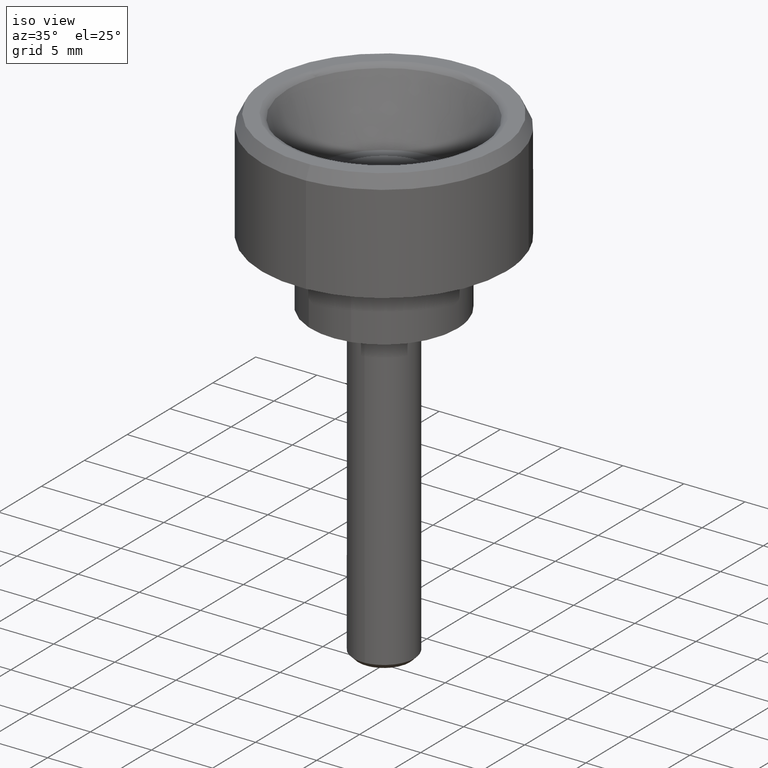
[diagram: clean part render]
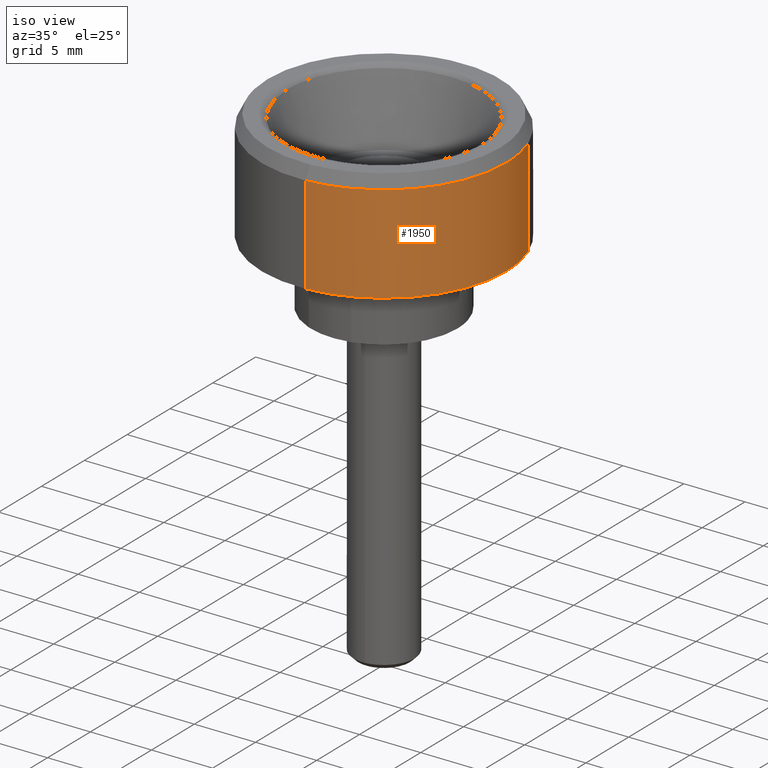
[diagram: same view with one face highlighted and labeled with its STEP entity id]
A machine part, iso view. The second image highlights one B-rep face of the part: STEP entity #1950.
In plain terms, the highlighted face is a freeform B-spline surface patch.
Its self-contained STEP definition (entity closure, byte-faithful):
#1743=CARTESIAN_POINT('',(2.503800040571518,-9.681476403777497,6.000000000001080));
#1744=VERTEX_POINT('',#1743);
#1750=CARTESIAN_POINT('',(0.610473977887163,-9.981348682527415,6.0));
#1751=VERTEX_POINT('',#1750);
#1752=CARTESIAN_POINT('',(2.503800040571517,-9.681476403777497,6.000000000001080));
#1753=CARTESIAN_POINT('',(1.571574303943828,-9.922566371860510,6.0));
#1754=CARTESIAN_POINT('',(0.610473977887163,-9.981348682527415,5.999999999999999));
#1762=(BOUNDED_CURVE()B_SPLINE_CURVE(2,(#1752,#1753,#1754),.UNSPECIFIED.,.F.,.U.)B_SPLINE_CURVE_WITH_KNOTS((3,3),(0.707273770288698,0.739333159614769),.UNSPECIFIED.)CURVE()GEOMETRIC_REPRESENTATION_ITEM()RATIONAL_B_SPLINE_CURVE((0.916996154475333,0.941717718347753,0.976072464681049))REPRESENTATION_ITEM(''));
#1763=EDGE_CURVE('',#1744,#1751,#1762,.T.);
#1801=CARTESIAN_POINT('',(9.361438676142448,3.516172053918408,6.000000000000001));
#1802=VERTEX_POINT('',#1801);
#1818=CARTESIAN_POINT('',(10.0,0.0,6.0));
#1819=VERTEX_POINT('',#1818);
#1820=CARTESIAN_POINT('',(9.361438676142448,3.516172053918408,6.000000000000001));
#1821=CARTESIAN_POINT('',(10.000000000000002,1.816069617931707,6.0));
#1822=CARTESIAN_POINT('',(10.0,0.0,6.0));
#1830=(BOUNDED_CURVE()B_SPLINE_CURVE(2,(#1820,#1821,#1822),.UNSPECIFIED.,.F.,.U.)B_SPLINE_CURVE_WITH_KNOTS((3,3),(0.440284300647599,0.500000000000000),.UNSPECIFIED.)CURVE()GEOMETRIC_REPRESENTATION_ITEM()RATIONAL_B_SPLINE_CURVE((0.893499713417520,0.930038706411916,1.0))REPRESENTATION_ITEM(''));
#1831=EDGE_CURVE('',#1802,#1819,#1830,.T.);
#1833=CARTESIAN_POINT('',(10.0,0.0,6.0));
#1834=CARTESIAN_POINT('',(10.0,-7.742827278374549,6.000000000000001));
#1835=CARTESIAN_POINT('',(2.503800040571517,-9.681476403777497,6.000000000001080));
#1843=(BOUNDED_CURVE()B_SPLINE_CURVE(2,(#1833,#1834,#1835),.UNSPECIFIED.,.F.,.U.)B_SPLINE_CURVE_WITH_KNOTS((3,3),(0.500000000000000,0.707273770288698),.UNSPECIFIED.)CURVE()GEOMETRIC_REPRESENTATION_ITEM()RATIONAL_B_SPLINE_CURVE((1.0,0.757163672978172,0.916996154475333))REPRESENTATION_ITEM(''));
#1844=EDGE_CURVE('',#1819,#1744,#1843,.T.);
#1881=CARTESIAN_POINT('',(9.328439990098264,3.604027369359922,14.200000000000001));
#1882=CARTESIAN_POINT('',(9.344957104607072,3.560052397050566,14.200000000000005));
#1883=CARTESIAN_POINT('',(9.889640193651504,2.109894517154083,14.200000000000006));
#1884=CARTESIAN_POINT('',(9.981347984218667,0.610485395348570,14.199999999999999));
#1885=CARTESIAN_POINT('',(10.591833379567237,-9.370862588870097,14.200000000000006));
#1886=CARTESIAN_POINT('',(0.568206709888296,-9.983933859397933,14.200000000000005));
#1887=CARTESIAN_POINT('',(0.526076121597163,-9.986510676566304,14.200000000000003));
#1888=CARTESIAN_POINT('',(9.328439990098264,3.604027369359922,5.795000000000000));
#1889=CARTESIAN_POINT('',(9.344957104607072,3.560052397050566,5.795000000000000));
#1890=CARTESIAN_POINT('',(9.889640193651504,2.109894517154083,5.795000000000000));
#1891=CARTESIAN_POINT('',(9.981347984218667,0.610485395348570,5.795000000000000));
#1892=CARTESIAN_POINT('',(10.591833379567237,-9.370862588870097,5.795000000000000));
#1893=CARTESIAN_POINT('',(0.568206709888296,-9.983933859397933,5.795000000000000));
#1894=CARTESIAN_POINT('',(0.526076121597163,-9.986510676566304,5.795000000000001));
#1902=(BOUNDED_SURFACE()B_SPLINE_SURFACE(2,1,((#1881,#1888),(#1882,#1889),(#1883,#1890),(#1884,#1891),(#1885,#1892),(#1886,#1893),(#1887,#1894)),.UNSPECIFIED.,.F.,.F.,.U.)B_SPLINE_SURFACE_WITH_KNOTS((3,1,2,1,3),(2,2),(0.0,0.099404214617078,3.413112713601838,19.981655208525630,20.081079894315391),(0.0,8.405000000000005),.UNSPECIFIED.)GEOMETRIC_REPRESENTATION_ITEM()RATIONAL_B_SPLINE_SURFACE(((0.904165488152668,0.904165488152668),(0.905219829066181,0.905219829066181),(0.941421356237309,0.941421356237309),(1.0,1.0),(0.707106781186548,0.707106781186548),(1.001757596738482,1.001757596738482),(1.003515193476964,1.003515193476964)))REPRESENTATION_ITEM('')SURFACE());
#1903=CARTESIAN_POINT('',(9.361438129016465,3.516173510586803,13.999999999999940));
#1904=VERTEX_POINT('',#1903);
#1905=CARTESIAN_POINT('',(10.0,0.0,14.0));
#1906=VERTEX_POINT('',#1905);
#1907=CARTESIAN_POINT('',(9.361438129016465,3.516173510586803,13.999999999999947));
#1908=CARTESIAN_POINT('',(10.0,1.816070421606551,14.000000000000002));
#1909=CARTESIAN_POINT('',(10.0,0.0,14.0));
#1917=(BOUNDED_CURVE()B_SPLINE_CURVE(2,(#1907,#1908,#1909),.UNSPECIFIED.,.F.,.U.)B_SPLINE_CURVE_WITH_KNOTS((3,3),(0.440284276070116,0.500000000000000),.UNSPECIFIED.)CURVE()GEOMETRIC_REPRESENTATION_ITEM()RATIONAL_B_SPLINE_CURVE((0.893499683340460,0.930038677617603,1.0))REPRESENTATION_ITEM(''));
#1918=EDGE_CURVE('',#1904,#1906,#1917,.T.);
#1919=ORIENTED_EDGE('',*,*,#1918,.T.);
#1920=CARTESIAN_POINT('',(0.610485395362975,-9.981347984219099,13.999999999994960));
#1921=VERTEX_POINT('',#1920);
#1922=CARTESIAN_POINT('',(10.0,0.0,14.0));
#1923=CARTESIAN_POINT('',(10.0,-9.407060669002794,13.999999999999996));
#1924=CARTESIAN_POINT('',(0.610485395362975,-9.981347984219099,13.999999999994955));
#1932=(BOUNDED_CURVE()B_SPLINE_CURVE(2,(#1922,#1923,#1924),.UNSPECIFIED.,.F.,.U.)B_SPLINE_CURVE_WITH_KNOTS((3,3),(0.500000000000000,0.739332962240977),.UNSPECIFIED.)CURVE()GEOMETRIC_REPRESENTATION_ITEM()RATIONAL_B_SPLINE_CURVE((1.0,0.719603993284327,0.976072041671077))REPRESENTATION_ITEM(''));
#1933=EDGE_CURVE('',#1906,#1921,#1932,.T.);
#1934=ORIENTED_EDGE('',*,*,#1933,.T.);
#1935=CARTESIAN_POINT('',(0.610485395362975,-9.981347984219099,13.999999999994960));
#1936=CARTESIAN_POINT('',(0.610473977887163,-9.981348682527415,6.0));
#1937=QUASI_UNIFORM_CURVE('',1,(#1935,#1936),.UNSPECIFIED.,.F.,.U.);
#1938=EDGE_CURVE('',#1921,#1751,#1937,.T.);
#1939=ORIENTED_EDGE('',*,*,#1938,.T.);
#1940=ORIENTED_EDGE('',*,*,#1763,.F.);
#1941=ORIENTED_EDGE('',*,*,#1844,.F.);
#1942=ORIENTED_EDGE('',*,*,#1831,.F.);
#1943=CARTESIAN_POINT('',(9.361438129016465,3.516173510586803,13.999999999999940));
#1944=CARTESIAN_POINT('',(9.361438676142448,3.516172053918408,6.000000000000001));
#1945=QUASI_UNIFORM_CURVE('',1,(#1943,#1944),.UNSPECIFIED.,.F.,.U.);
#1946=EDGE_CURVE('',#1904,#1802,#1945,.T.);
#1947=ORIENTED_EDGE('',*,*,#1946,.F.);
#1948=EDGE_LOOP('',(#1919,#1934,#1939,#1940,#1941,#1942,#1947));
#1949=FACE_OUTER_BOUND('',#1948,.T.);
#1950=ADVANCED_FACE('',(#1949),#1902,.T.);